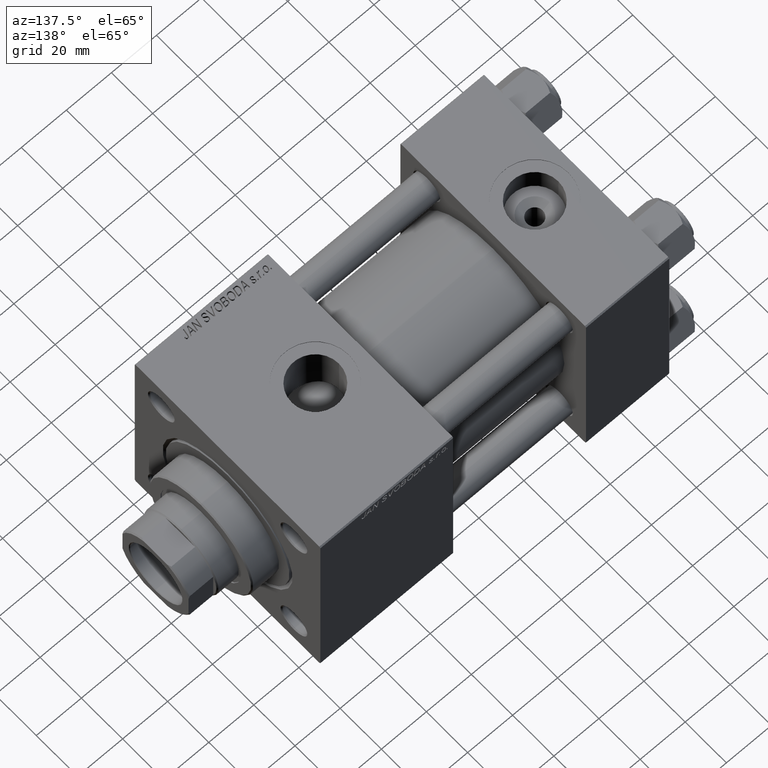
[diagram: clean part render]
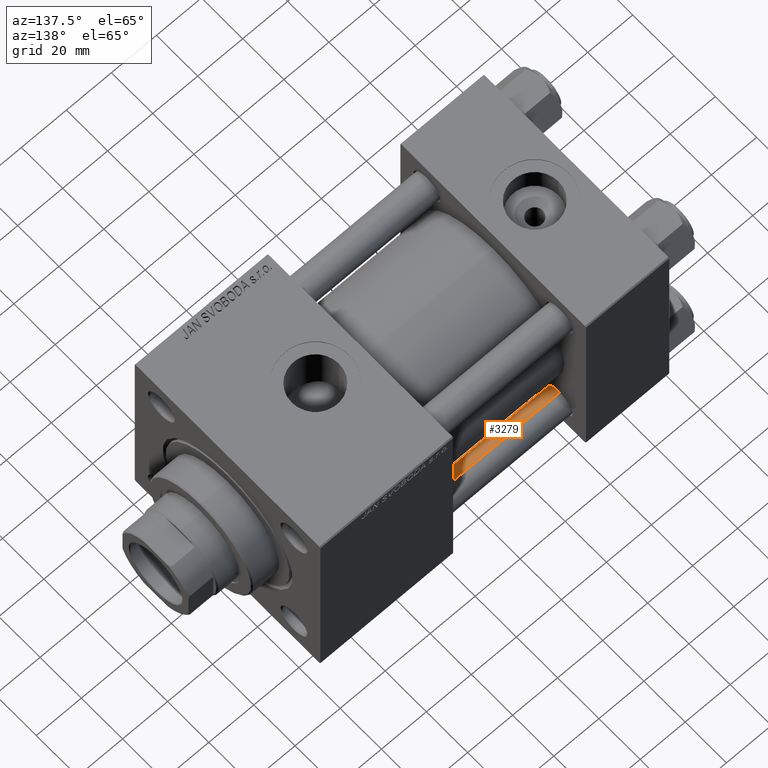
[diagram: same view with one face highlighted and labeled with its STEP entity id]
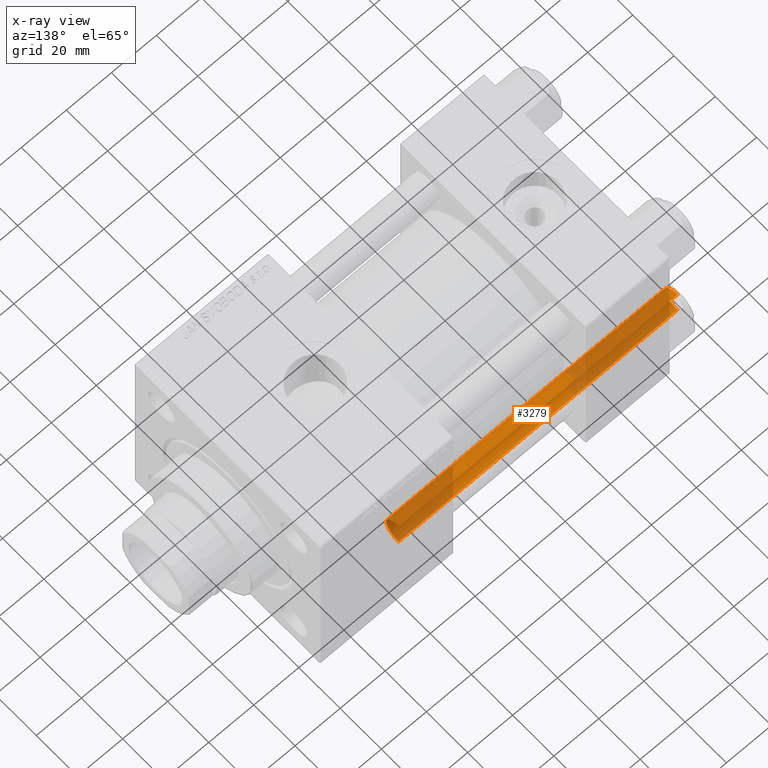
[diagram: x-ray of the same camera — body ghosted, the highlighted face saturated]
A machine part, auxiliary view. The second image highlights one B-rep face of the part: STEP entity #3279.
The next image is the same camera in x-ray: the body ghosted, the highlighted face saturated — about 57% of this face is hidden behind the body in this view.
In plain terms, the highlighted cylindrical surface (edge-blend (fillet) strip) has radius 6 mm, axis along (1, -0, -0).
Its self-contained STEP definition (entity closure, byte-faithful):
#709 = CARTESIAN_POINT ( 'NONE',  ( -6.000000000000000888, 0.000000000000000000, 124.5000000000000000 ) ) ;
#946 = CARTESIAN_POINT ( 'NONE',  ( -6.000000000000000888, 0.000000000000000000, 125.0000000000000000 ) ) ;
#1623 = EDGE_LOOP ( 'NONE', ( #30159, #19224, #20915, #18659 ) ) ;
#3030 = AXIS2_PLACEMENT_3D ( 'NONE', #34895, #23482, #43017 ) ;
#3279 = ADVANCED_FACE ( 'NONE', ( #42835 ), #22530, .T. ) ;
#5068 = LINE ( 'NONE', #43163, #31652 ) ;
#7550 = DIRECTION ( 'NONE',  ( -0.000000000000000000, -0.000000000000000000, -1.000000000000000000 ) ) ;
#8563 = LINE ( 'NONE', #946, #40991 ) ;
#9118 = CARTESIAN_POINT ( 'NONE',  ( 0.000000000000000000, 0.000000000000000000, 0.4999999999999865663 ) ) ;
#9526 = EDGE_CURVE ( 'NONE', #16403, #21709, #24941, .T. ) ;
#9904 = CARTESIAN_POINT ( 'NONE',  ( 6.000000000000000888, 7.347880794884120722E-16, 124.5000000000000000 ) ) ;
#11872 = DIRECTION ( 'NONE',  ( -1.000000000000000000, 0.000000000000000000, 0.000000000000000000 ) ) ;
#12529 = AXIS2_PLACEMENT_3D ( 'NONE', #50213, #7550, #11872 ) ;
#12741 = CIRCLE ( 'NONE', #28141, 6.000000000000000888 ) ;
#16403 = VERTEX_POINT ( 'NONE', #9904 ) ;
#17790 = CARTESIAN_POINT ( 'NONE',  ( 6.000000000000000888, 7.347880794884120722E-16, 0.4999999999999865663 ) ) ;
#18659 = ORIENTED_EDGE ( 'NONE', *, *, #42008, .T. ) ;
#19224 = ORIENTED_EDGE ( 'NONE', *, *, #9526, .T. ) ;
#20915 = ORIENTED_EDGE ( 'NONE', *, *, #34375, .T. ) ;
#21709 = VERTEX_POINT ( 'NONE', #709 ) ;
#22530 = CYLINDRICAL_SURFACE ( 'NONE', #12529, 6.000000000000000888 ) ;
#23482 = DIRECTION ( 'NONE',  ( 0.000000000000000000, 0.000000000000000000, -1.000000000000000000 ) ) ;
#24941 = CIRCLE ( 'NONE', #3030, 6.000000000000000888 ) ;
#26786 = VERTEX_POINT ( 'NONE', #17790 ) ;
#28141 = AXIS2_PLACEMENT_3D ( 'NONE', #9118, #28169, #40077 ) ;
#28169 = DIRECTION ( 'NONE',  ( -0.000000000000000000, -0.000000000000000000, 1.000000000000000000 ) ) ;
#30159 = ORIENTED_EDGE ( 'NONE', *, *, #50174, .F. ) ;
#31652 = VECTOR ( 'NONE', #44154, 1000.000000000000000 ) ;
#31913 = DIRECTION ( 'NONE',  ( -0.000000000000000000, -0.000000000000000000, -1.000000000000000000 ) ) ;
#34375 = EDGE_CURVE ( 'NONE', #21709, #43193, #8563, .T. ) ;
#34895 = CARTESIAN_POINT ( 'NONE',  ( 0.000000000000000000, 0.000000000000000000, 124.5000000000000000 ) ) ;
#34991 = CARTESIAN_POINT ( 'NONE',  ( -6.000000000000000888, 0.000000000000000000, 0.4999999999999865663 ) ) ;
#40077 = DIRECTION ( 'NONE',  ( 1.000000000000000000, 0.000000000000000000, 0.000000000000000000 ) ) ;
#40991 = VECTOR ( 'NONE', #31913, 1000.000000000000000 ) ;
#42008 = EDGE_CURVE ( 'NONE', #43193, #26786, #12741, .T. ) ;
#42835 = FACE_OUTER_BOUND ( 'NONE', #1623, .T. ) ;
#43017 = DIRECTION ( 'NONE',  ( 1.000000000000000000, 0.000000000000000000, 0.000000000000000000 ) ) ;
#43163 = CARTESIAN_POINT ( 'NONE',  ( 6.000000000000000888, 7.347880794884120722E-16, 125.0000000000000000 ) ) ;
#43193 = VERTEX_POINT ( 'NONE', #34991 ) ;
#44154 = DIRECTION ( 'NONE',  ( -0.000000000000000000, -0.000000000000000000, -1.000000000000000000 ) ) ;
#50174 = EDGE_CURVE ( 'NONE', #16403, #26786, #5068, .T. ) ;
#50213 = CARTESIAN_POINT ( 'NONE',  ( 0.000000000000000000, 0.000000000000000000, 125.0000000000000000 ) ) ;